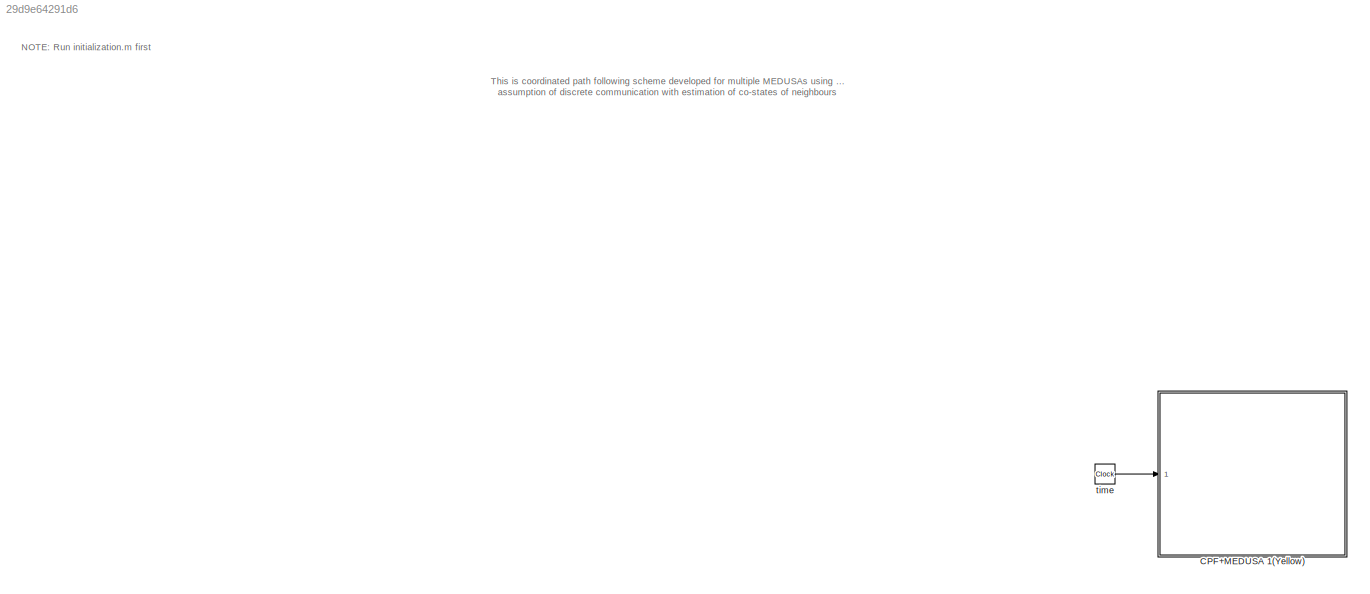
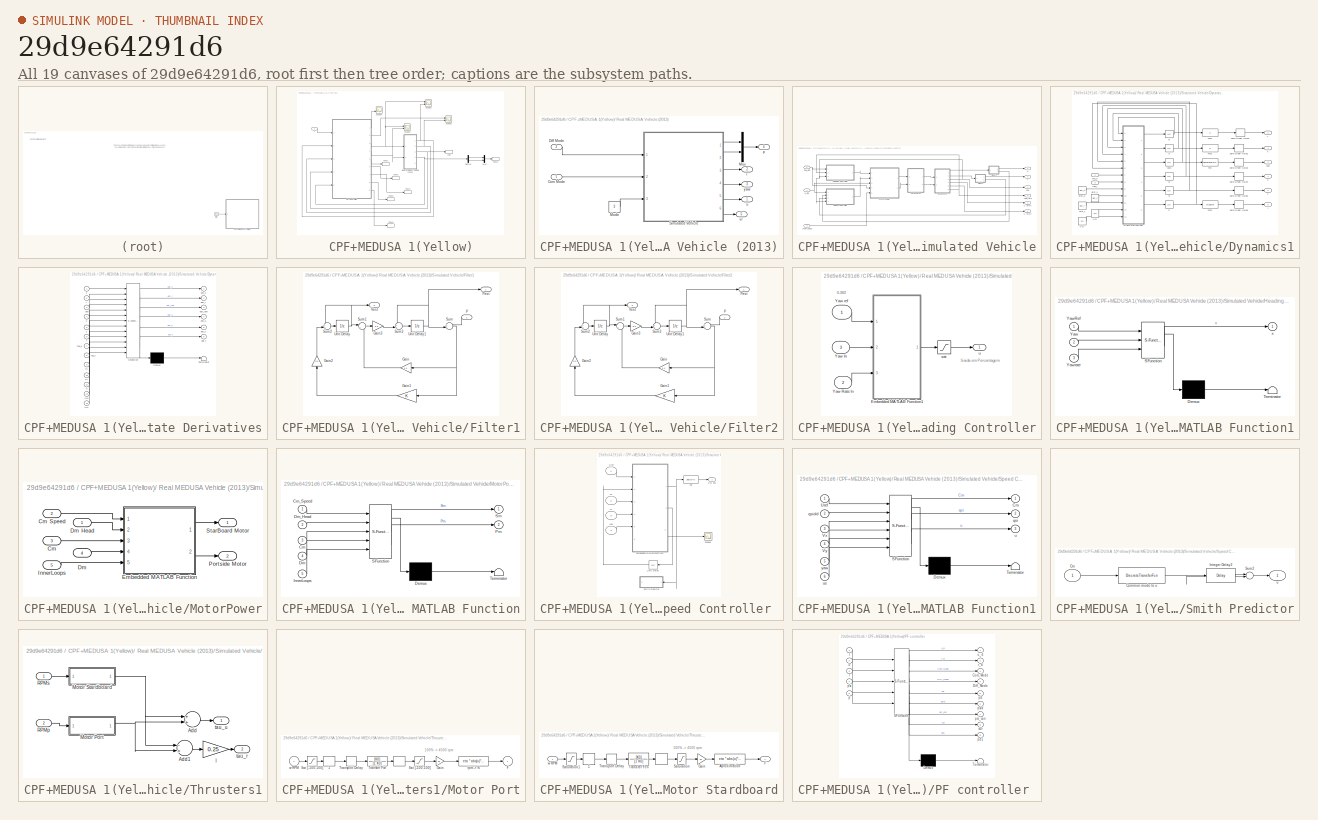
[diagram: thumbnail index - all 19 canvases of the model, root first then tree order]
MODEL slx_29d9e64291d6
KIND model
CONFIG AbsTol = auto
CONFIG FixedStep = Ts
CONFIG MaxStep = auto
CONFIG MinStep = auto
CONFIG RelTol = 1e-3
CONFIG SampleTimeConstraint = Unconstrained
CONFIG Solver = ode45
CONFIG SolverMode = Auto
CONFIG SolverName = ode45
CONFIG StartTime = 0.0
CONFIG StopTime = 400
BLOCK [SubSystem] CPF+MEDUSA 1(Yellow)
  Ports = [1]
  Priority = 2
  RequestExecContextInheritance = off
  TreatAsAtomicUnit = on
  Variant = off
BLOCK [SubSystem] CPF+MEDUSA 1(Yellow)/ Real MEDUSA Vehicle (2013)
  AncestorBlock = Mylibrary/\nReal MEDUSA Vehicle (2013)
  Ports = [2, 5]
  RequestExecContextInheritance = off
  Variant = off
BLOCK [Inport] CPF+MEDUSA 1(Yellow)/ Real MEDUSA Vehicle (2013)/Com Mode
  IconDisplay = Port number
BLOCK [Inport] CPF+MEDUSA 1(Yellow)/ Real MEDUSA Vehicle (2013)/Diff Mode
  IconDisplay = Port number
  Port = 2
BLOCK [Constant] CPF+MEDUSA 1(Yellow)/ Real MEDUSA Vehicle (2013)/Mode
  Value = 3
BLOCK [Mux] CPF+MEDUSA 1(Yellow)/ Real MEDUSA Vehicle (2013)/Mux
  DisplayOption = bar
  Inputs = 2
  Ports = [2, 1]
BLOCK [SubSystem] CPF+MEDUSA 1(Yellow)/ Real MEDUSA Vehicle (2013)/Simulated Vehicle
  Ports = [3, 6]
  RequestExecContextInheritance = off
  Variant = off
BLOCK [SubSystem] CPF+MEDUSA 1(Yellow)/ Real MEDUSA Vehicle (2013)/Simulated Vehicle/Dynamics1
  Ports = [2, 6]
  RequestExecContextInheritance = off
  Variant = off
BLOCK [Fcn] CPF+MEDUSA 1(Yellow)/ Real MEDUSA Vehicle (2013)/Simulated Vehicle/Dynamics1/Fcn
  Expr = 180+atan2(sin(u+pi),cos(u+pi))*180/pi
BLOCK [Fcn] CPF+MEDUSA 1(Yellow)/ Real MEDUSA Vehicle (2013)/Simulated Vehicle/Dynamics1/Fcn1
  Expr = u
BLOCK [Fcn] CPF+MEDUSA 1(Yellow)/ Real MEDUSA Vehicle (2013)/Simulated Vehicle/Dynamics1/Fcn2
  Expr = u
BLOCK [Fcn] CPF+MEDUSA 1(Yellow)/ Real MEDUSA Vehicle (2013)/Simulated Vehicle/Dynamics1/Fcn4
  Expr = u*180/pi
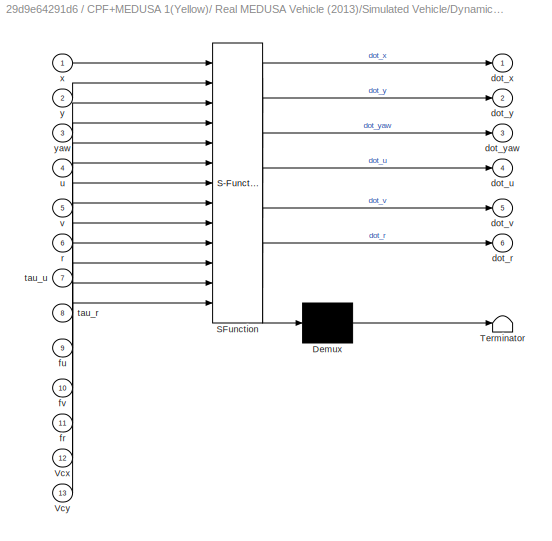
BLOCK [SubSystem] CPF+MEDUSA 1(Yellow)/ Real MEDUSA Vehicle (2013)/Simulated Vehicle/Dynamics1/State Derivatives
  ErrorFcn = Stateflow.Translate.translate
  PermitHierarchicalResolution = ExplicitOnly
  Ports = [13, 6]
  RequestExecContextInheritance = off
  SFBlockType = MATLAB Function
  TreatAsAtomicUnit = on
  Variant = off
BLOCK [Demux] CPF+MEDUSA 1(Yellow)/ Real MEDUSA Vehicle (2013)/Simulated Vehicle/Dynamics1/State Derivatives/ Demux 
  Outputs = 1
  Ports = [1, 1]
BLOCK [S-Function] CPF+MEDUSA 1(Yellow)/ Real MEDUSA Vehicle (2013)/Simulated Vehicle/Dynamics1/State Derivatives/ SFunction 
  EnableBusSupport = on
  FunctionName = sf_sfun
  PortCounts = [13 7]
  Ports = [13, 7]
  SFunctionDeploymentMode = off
  Tag = Stateflow S-Function PF_ToolwithMedusa_test 9
BLOCK [Terminator] CPF+MEDUSA 1(Yellow)/ Real MEDUSA Vehicle (2013)/Simulated Vehicle/Dynamics1/State Derivatives/ Terminator 
BLOCK [Inport] CPF+MEDUSA 1(Yellow)/ Real MEDUSA Vehicle (2013)/Simulated Vehicle/Dynamics1/State Derivatives/Vcx
  IconDisplay = Port number
  Port = 12
BLOCK [Inport] CPF+MEDUSA 1(Yellow)/ Real MEDUSA Vehicle (2013)/Simulated Vehicle/Dynamics1/State Derivatives/Vcy
  IconDisplay = Port number
  Port = 13
BLOCK [Outport] CPF+MEDUSA 1(Yellow)/ Real MEDUSA Vehicle (2013)/Simulated Vehicle/Dynamics1/State Derivatives/dot_r
  IconDisplay = Port number
  Port = 6
BLOCK [Outport] CPF+MEDUSA 1(Yellow)/ Real MEDUSA Vehicle (2013)/Simulated Vehicle/Dynamics1/State Derivatives/dot_u
  IconDisplay = Port number
  Port = 4
BLOCK [Outport] CPF+MEDUSA 1(Yellow)/ Real MEDUSA Vehicle (2013)/Simulated Vehicle/Dynamics1/State Derivatives/dot_v
  IconDisplay = Port number
  Port = 5
BLOCK [Outport] CPF+MEDUSA 1(Yellow)/ Real MEDUSA Vehicle (2013)/Simulated Vehicle/Dynamics1/State Derivatives/dot_x
  IconDisplay = Port number
BLOCK [Outport] CPF+MEDUSA 1(Yellow)/ Real MEDUSA Vehicle (2013)/Simulated Vehicle/Dynamics1/State Derivatives/dot_y
  IconDisplay = Port number
  Port = 2
BLOCK [Outport] CPF+MEDUSA 1(Yellow)/ Real MEDUSA Vehicle (2013)/Simulated Vehicle/Dynamics1/State Derivatives/dot_yaw
  IconDisplay = Port number
  Port = 3
BLOCK [Inport] CPF+MEDUSA 1(Yellow)/ Real MEDUSA Vehicle (2013)/Simulated Vehicle/Dynamics1/State Derivatives/fr
  IconDisplay = Port number
  Port = 11
BLOCK [Inport] CPF+MEDUSA 1(Yellow)/ Real MEDUSA Vehicle (2013)/Simulated Vehicle/Dynamics1/State Derivatives/fu
  IconDisplay = Port number
  Port = 9
BLOCK [Inport] CPF+MEDUSA 1(Yellow)/ Real MEDUSA Vehicle (2013)/Simulated Vehicle/Dynamics1/State Derivatives/fv
  IconDisplay = Port number
  Port = 10
BLOCK [Inport] CPF+MEDUSA 1(Yellow)/ Real MEDUSA Vehicle (2013)/Simulated Vehicle/Dynamics1/State Derivatives/r
  IconDisplay = Port number
  Port = 6
BLOCK [Inport] CPF+MEDUSA 1(Yellow)/ Real MEDUSA Vehicle (2013)/Simulated Vehicle/Dynamics1/State Derivatives/tau_r
  IconDisplay = Port number
  Port = 8
BLOCK [Inport] CPF+MEDUSA 1(Yellow)/ Real MEDUSA Vehicle (2013)/Simulated Vehicle/Dynamics1/State Derivatives/tau_u
  IconDisplay = Port number
  Port = 7
BLOCK [Inport] CPF+MEDUSA 1(Yellow)/ Real MEDUSA Vehicle (2013)/Simulated Vehicle/Dynamics1/State Derivatives/u
  IconDisplay = Port number
  Port = 4
BLOCK [Inport] CPF+MEDUSA 1(Yellow)/ Real MEDUSA Vehicle (2013)/Simulated Vehicle/Dynamics1/State Derivatives/v
  IconDisplay = Port number
  Port = 5
BLOCK [Inport] CPF+MEDUSA 1(Yellow)/ Real MEDUSA Vehicle (2013)/Simulated Vehicle/Dynamics1/State Derivatives/x
  IconDisplay = Port number
BLOCK [Inport] CPF+MEDUSA 1(Yellow)/ Real MEDUSA Vehicle (2013)/Simulated Vehicle/Dynamics1/State Derivatives/y
  IconDisplay = Port number
  Port = 2
BLOCK [Inport] CPF+MEDUSA 1(Yellow)/ Real MEDUSA Vehicle (2013)/Simulated Vehicle/Dynamics1/State Derivatives/yaw
  IconDisplay = Port number
  Port = 3
BLOCK [Constant] CPF+MEDUSA 1(Yellow)/ Real MEDUSA Vehicle (2013)/Simulated Vehicle/Dynamics1/Vcx
  Value = Vcx
BLOCK [Constant] CPF+MEDUSA 1(Yellow)/ Real MEDUSA Vehicle (2013)/Simulated Vehicle/Dynamics1/Vcy
  Value = Vcy
BLOCK [ZeroOrderHold] CPF+MEDUSA 1(Yellow)/ Real MEDUSA Vehicle (2013)/Simulated Vehicle/Dynamics1/Zero-Order Hold1
  SampleTime = 0.2
BLOCK [ZeroOrderHold] CPF+MEDUSA 1(Yellow)/ Real MEDUSA Vehicle (2013)/Simulated Vehicle/Dynamics1/Zero-Order Hold2
  SampleTime = 0.2
BLOCK [ZeroOrderHold] CPF+MEDUSA 1(Yellow)/ Real MEDUSA Vehicle (2013)/Simulated Vehicle/Dynamics1/Zero-Order Hold3
  SampleTime = 0.2
BLOCK [ZeroOrderHold] CPF+MEDUSA 1(Yellow)/ Real MEDUSA Vehicle (2013)/Simulated Vehicle/Dynamics1/Zero-Order Hold4
  SampleTime = 0.2
BLOCK [ZeroOrderHold] CPF+MEDUSA 1(Yellow)/ Real MEDUSA Vehicle (2013)/Simulated Vehicle/Dynamics1/Zero-Order Hold5
  SampleTime = 0.2
BLOCK [ZeroOrderHold] CPF+MEDUSA 1(Yellow)/ Real MEDUSA Vehicle (2013)/Simulated Vehicle/Dynamics1/Zero-Order Hold6
  SampleTime = 0.2
BLOCK [Constant] CPF+MEDUSA 1(Yellow)/ Real MEDUSA Vehicle (2013)/Simulated Vehicle/Dynamics1/dist_r
  Value = dist_r
BLOCK [Constant] CPF+MEDUSA 1(Yellow)/ Real MEDUSA Vehicle (2013)/Simulated Vehicle/Dynamics1/dist_u
  Value = dist_u
BLOCK [Constant] CPF+MEDUSA 1(Yellow)/ Real MEDUSA Vehicle (2013)/Simulated Vehicle/Dynamics1/dist_v
  Value = dist_v
BLOCK [Outport] CPF+MEDUSA 1(Yellow)/ Real MEDUSA Vehicle (2013)/Simulated Vehicle/Dynamics1/r
  IconDisplay = Port number
  Port = 6
BLOCK [Integrator] CPF+MEDUSA 1(Yellow)/ Real MEDUSA Vehicle (2013)/Simulated Vehicle/Dynamics1/ri
  InitialCondition = r0
  Ports = [1, 1]
BLOCK [Inport] CPF+MEDUSA 1(Yellow)/ Real MEDUSA Vehicle (2013)/Simulated Vehicle/Dynamics1/tau_r
  IconDisplay = Port number
  Port = 2
BLOCK [Inport] CPF+MEDUSA 1(Yellow)/ Real MEDUSA Vehicle (2013)/Simulated Vehicle/Dynamics1/tau_u
  IconDisplay = Port number
BLOCK [Outport] CPF+MEDUSA 1(Yellow)/ Real MEDUSA Vehicle (2013)/Simulated Vehicle/Dynamics1/u
  IconDisplay = Port number
  Port = 4
BLOCK [Integrator] CPF+MEDUSA 1(Yellow)/ Real MEDUSA Vehicle (2013)/Simulated Vehicle/Dynamics1/ui
  InitialCondition = u0
  Ports = [1, 1]
BLOCK [Outport] CPF+MEDUSA 1(Yellow)/ Real MEDUSA Vehicle (2013)/Simulated Vehicle/Dynamics1/v
  IconDisplay = Port number
  Port = 5
BLOCK [Integrator] CPF+MEDUSA 1(Yellow)/ Real MEDUSA Vehicle (2013)/Simulated Vehicle/Dynamics1/vi
  InitialCondition = v0
  Ports = [1, 1]
BLOCK [Outport] CPF+MEDUSA 1(Yellow)/ Real MEDUSA Vehicle (2013)/Simulated Vehicle/Dynamics1/x
  IconDisplay = Port number
BLOCK [Integrator] CPF+MEDUSA 1(Yellow)/ Real MEDUSA Vehicle (2013)/Simulated Vehicle/Dynamics1/xi
  InitialCondition = y0
  Ports = [1, 1]
BLOCK [Outport] CPF+MEDUSA 1(Yellow)/ Real MEDUSA Vehicle (2013)/Simulated Vehicle/Dynamics1/y
  IconDisplay = Port number
  Port = 2
BLOCK [Outport] CPF+MEDUSA 1(Yellow)/ Real MEDUSA Vehicle (2013)/Simulated Vehicle/Dynamics1/yaw
  IconDisplay = Port number
  Port = 3
BLOCK [Integrator] CPF+MEDUSA 1(Yellow)/ Real MEDUSA Vehicle (2013)/Simulated Vehicle/Dynamics1/yawi
  InitialCondition = yaw0
  Ports = [1, 1]
BLOCK [Integrator] CPF+MEDUSA 1(Yellow)/ Real MEDUSA Vehicle (2013)/Simulated Vehicle/Dynamics1/yi
  InitialCondition = x0
  Ports = [1, 1]
BLOCK [SubSystem] CPF+MEDUSA 1(Yellow)/ Real MEDUSA Vehicle (2013)/Simulated Vehicle/Filter1
  Ports = [1, 2]
  RequestExecContextInheritance = off
  Variant = off
BLOCK [Gain] CPF+MEDUSA 1(Yellow)/ Real MEDUSA Vehicle (2013)/Simulated Vehicle/Filter1/Gain
  Gain = 1.4
  OutDataTypeStr = Inherit: Inherit via internal rule
  ParamDataTypeStr = Inherit: Inherit via internal rule
  SaturateOnIntegerOverflow = off
BLOCK [Gain] CPF+MEDUSA 1(Yellow)/ Real MEDUSA Vehicle (2013)/Simulated Vehicle/Filter1/Gain1
  OutDataTypeStr = Inherit: Inherit via internal rule
  ParamDataTypeStr = Inherit: Inherit via internal rule
  SaturateOnIntegerOverflow = off
BLOCK [Gain] CPF+MEDUSA 1(Yellow)/ Real MEDUSA Vehicle (2013)/Simulated Vehicle/Filter1/Gain2
  Gain = 0.2
  OutDataTypeStr = Inherit: Inherit via internal rule
  ParamDataTypeStr = Inherit: Inherit via internal rule
  SaturateOnIntegerOverflow = off
BLOCK [Gain] CPF+MEDUSA 1(Yellow)/ Real MEDUSA Vehicle (2013)/Simulated Vehicle/Filter1/Gain3
  Gain = 0.2
  OutDataTypeStr = Inherit: Inherit via internal rule
  ParamDataTypeStr = Inherit: Inherit via internal rule
  SaturateOnIntegerOverflow = off
BLOCK [Inport] CPF+MEDUSA 1(Yellow)/ Real MEDUSA Vehicle (2013)/Simulated Vehicle/Filter1/P
  IconDisplay = Port number
BLOCK [Outport] CPF+MEDUSA 1(Yellow)/ Real MEDUSA Vehicle (2013)/Simulated Vehicle/Filter1/Pest
  IconDisplay = Port number
BLOCK [Sum] CPF+MEDUSA 1(Yellow)/ Real MEDUSA Vehicle (2013)/Simulated Vehicle/Filter1/Sum
  IconShape = round
  InputSameDT = off
  Inputs = +-|
  OutDataTypeStr = Inherit: Inherit via internal rule
  Ports = [2, 1]
  SaturateOnIntegerOverflow = off
BLOCK [Sum] CPF+MEDUSA 1(Yellow)/ Real MEDUSA Vehicle (2013)/Simulated Vehicle/Filter1/Sum1
  IconShape = round
  InputSameDT = off
  Inputs = |++
  OutDataTypeStr = Inherit: Inherit via internal rule
  Ports = [2, 1]
  SaturateOnIntegerOverflow = off
BLOCK [Sum] CPF+MEDUSA 1(Yellow)/ Real MEDUSA Vehicle (2013)/Simulated Vehicle/Filter1/Sum2
  IconShape = round
  InputSameDT = off
  Inputs = ++|
  OutDataTypeStr = Inherit: Inherit via internal rule
  Ports = [2, 1]
  SaturateOnIntegerOverflow = off
BLOCK [Sum] CPF+MEDUSA 1(Yellow)/ Real MEDUSA Vehicle (2013)/Simulated Vehicle/Filter1/Sum3
  IconShape = round
  InputSameDT = off
  Inputs = ++|
  OutDataTypeStr = Inherit: Inherit via internal rule
  Ports = [2, 1]
  SaturateOnIntegerOverflow = off
BLOCK [UnitDelay] CPF+MEDUSA 1(Yellow)/ Real MEDUSA Vehicle (2013)/Simulated Vehicle/Filter1/Unit Delay
  SampleTime = -1
BLOCK [UnitDelay] CPF+MEDUSA 1(Yellow)/ Real MEDUSA Vehicle (2013)/Simulated Vehicle/Filter1/Unit Delay1
  InitialCondition = 290
  SampleTime = -1
BLOCK [Outport] CPF+MEDUSA 1(Yellow)/ Real MEDUSA Vehicle (2013)/Simulated Vehicle/Filter1/Vest
  IconDisplay = Port number
  Port = 2
BLOCK [SubSystem] CPF+MEDUSA 1(Yellow)/ Real MEDUSA Vehicle (2013)/Simulated Vehicle/Filter2
  Ports = [1, 2]
  RequestExecContextInheritance = off
  Variant = off
BLOCK [Gain] CPF+MEDUSA 1(Yellow)/ Real MEDUSA Vehicle (2013)/Simulated Vehicle/Filter2/Gain
  Gain = 1.4
  OutDataTypeStr = Inherit: Inherit via internal rule
  ParamDataTypeStr = Inherit: Inherit via internal rule
  SaturateOnIntegerOverflow = off
BLOCK [Gain] CPF+MEDUSA 1(Yellow)/ Real MEDUSA Vehicle (2013)/Simulated Vehicle/Filter2/Gain1
  OutDataTypeStr = Inherit: Inherit via internal rule
  ParamDataTypeStr = Inherit: Inherit via internal rule
  SaturateOnIntegerOverflow = off
BLOCK [Gain] CPF+MEDUSA 1(Yellow)/ Real MEDUSA Vehicle (2013)/Simulated Vehicle/Filter2/Gain2
  Gain = 0.2
  OutDataTypeStr = Inherit: Inherit via internal rule
  ParamDataTypeStr = Inherit: Inherit via internal rule
  SaturateOnIntegerOverflow = off
BLOCK [Gain] CPF+MEDUSA 1(Yellow)/ Real MEDUSA Vehicle (2013)/Simulated Vehicle/Filter2/Gain3
  Gain = 0.2
  OutDataTypeStr = Inherit: Inherit via internal rule
  ParamDataTypeStr = Inherit: Inherit via internal rule
  SaturateOnIntegerOverflow = off
BLOCK [Inport] CPF+MEDUSA 1(Yellow)/ Real MEDUSA Vehicle (2013)/Simulated Vehicle/Filter2/P
  IconDisplay = Port number
BLOCK [Outport] CPF+MEDUSA 1(Yellow)/ Real MEDUSA Vehicle (2013)/Simulated Vehicle/Filter2/Pest
  IconDisplay = Port number
BLOCK [Sum] CPF+MEDUSA 1(Yellow)/ Real MEDUSA Vehicle (2013)/Simulated Vehicle/Filter2/Sum
  IconShape = round
  InputSameDT = off
  Inputs = +-|
  OutDataTypeStr = Inherit: Inherit via internal rule
  Ports = [2, 1]
  SaturateOnIntegerOverflow = off
BLOCK [Sum] CPF+MEDUSA 1(Yellow)/ Real MEDUSA Vehicle (2013)/Simulated Vehicle/Filter2/Sum1
  IconShape = round
  InputSameDT = off
  Inputs = |++
  OutDataTypeStr = Inherit: Inherit via internal rule
  Ports = [2, 1]
  SaturateOnIntegerOverflow = off
BLOCK [Sum] CPF+MEDUSA 1(Yellow)/ Real MEDUSA Vehicle (2013)/Simulated Vehicle/Filter2/Sum2
  IconShape = round
  InputSameDT = off
  Inputs = ++|
  OutDataTypeStr = Inherit: Inherit via internal rule
  Ports = [2, 1]
  SaturateOnIntegerOverflow = off
BLOCK [Sum] CPF+MEDUSA 1(Yellow)/ Real MEDUSA Vehicle (2013)/Simulated Vehicle/Filter2/Sum3
  IconShape = round
  InputSameDT = off
  Inputs = ++|
  OutDataTypeStr = Inherit: Inherit via internal rule
  Ports = [2, 1]
  SaturateOnIntegerOverflow = off
BLOCK [UnitDelay] CPF+MEDUSA 1(Yellow)/ Real MEDUSA Vehicle (2013)/Simulated Vehicle/Filter2/Unit Delay
  SampleTime = -1
BLOCK [UnitDelay] CPF+MEDUSA 1(Yellow)/ Real MEDUSA Vehicle (2013)/Simulated Vehicle/Filter2/Unit Delay1
  InitialCondition = 200
  SampleTime = -1
BLOCK [Outport] CPF+MEDUSA 1(Yellow)/ Real MEDUSA Vehicle (2013)/Simulated Vehicle/Filter2/Vest
  IconDisplay = Port number
  Port = 2
BLOCK [SubSystem] CPF+MEDUSA 1(Yellow)/ Real MEDUSA Vehicle (2013)/Simulated Vehicle/Heading Controller
  Ports = [3, 1]
  RequestExecContextInheritance = off
  Variant = off
BLOCK [SubSystem] CPF+MEDUSA 1(Yellow)/ Real MEDUSA Vehicle (2013)/Simulated Vehicle/Heading Controller/Embedded MATLAB Function1
  ErrorFcn = Stateflow.Translate.translate
  PermitHierarchicalResolution = ExplicitOnly
  Ports = [3, 1]
  RequestExecContextInheritance = off
  SFBlockType = MATLAB Function
  TreatAsAtomicUnit = on
  Variant = off
BLOCK [Demux] CPF+MEDUSA 1(Yellow)/ Real MEDUSA Vehicle (2013)/Simulated Vehicle/Heading Controller/Embedded MATLAB Function1/ Demux 
  Outputs = 1
  Ports = [1, 1]
BLOCK [S-Function] CPF+MEDUSA 1(Yellow)/ Real MEDUSA Vehicle (2013)/Simulated Vehicle/Heading Controller/Embedded MATLAB Function1/ SFunction 
  EnableBusSupport = on
  FunctionName = sf_sfun
  Parameters = Kd,Kp
  PortCounts = [3 2]
  Ports = [3, 2]
  SFunctionDeploymentMode = off
  Tag = Stateflow S-Function PF_ToolwithMedusa_test 1
BLOCK [Terminator] CPF+MEDUSA 1(Yellow)/ Real MEDUSA Vehicle (2013)/Simulated Vehicle/Heading Controller/Embedded MATLAB Function1/ Terminator 
BLOCK [Inport] CPF+MEDUSA 1(Yellow)/ Real MEDUSA Vehicle (2013)/Simulated Vehicle/Heading Controller/Embedded MATLAB Function1/Yaw
  IconDisplay = Port number
  Port = 2
BLOCK [Inport] CPF+MEDUSA 1(Yellow)/ Real MEDUSA Vehicle (2013)/Simulated Vehicle/Heading Controller/Embedded MATLAB Function1/YawRef
  IconDisplay = Port number
BLOCK [Inport] CPF+MEDUSA 1(Yellow)/ Real MEDUSA Vehicle (2013)/Simulated Vehicle/Heading Controller/Embedded MATLAB Function1/Yawrate
  IconDisplay = Port number
  Port = 3
BLOCK [Outport] CPF+MEDUSA 1(Yellow)/ Real MEDUSA Vehicle (2013)/Simulated Vehicle/Heading Controller/Embedded MATLAB Function1/x
  IconDisplay = Port number
BLOCK [Inport] CPF+MEDUSA 1(Yellow)/ Real MEDUSA Vehicle (2013)/Simulated Vehicle/Heading Controller/Yaw In
  IconDisplay = Port number
  Port = 3
BLOCK [Inport] CPF+MEDUSA 1(Yellow)/ Real MEDUSA Vehicle (2013)/Simulated Vehicle/Heading Controller/Yaw Rate In
  IconDisplay = Port number
  Port = 2
  SampleTime = Ts
BLOCK [Inport] CPF+MEDUSA 1(Yellow)/ Real MEDUSA Vehicle (2013)/Simulated Vehicle/Heading Controller/Yaw ref
  IconDisplay = Port number
  SampleTime = Ts
BLOCK [Saturate] CPF+MEDUSA 1(Yellow)/ Real MEDUSA Vehicle (2013)/Simulated Vehicle/Heading Controller/sat
  InputPortMap = u0
  LowerLimit = -Inf
  Ports = [1, 1]
  SampleTime = Ts
  UpperLimit = Inf
BLOCK [Outport] CPF+MEDUSA 1(Yellow)/ Real MEDUSA Vehicle (2013)/Simulated Vehicle/Heading Controller/u
  IconDisplay = Port number
BLOCK [Inport] CPF+MEDUSA 1(Yellow)/ Real MEDUSA Vehicle (2013)/Simulated Vehicle/InnerLoops
  IconDisplay = Port number
  Port = 3
BLOCK [SubSystem] CPF+MEDUSA 1(Yellow)/ Real MEDUSA Vehicle (2013)/Simulated Vehicle/MotorPower
  Ports = [5, 2]
  RequestExecContextInheritance = off
  Variant = off
BLOCK [Inport] CPF+MEDUSA 1(Yellow)/ Real MEDUSA Vehicle (2013)/Simulated Vehicle/MotorPower/Cm
  IconDisplay = Port number
  Port = 3
BLOCK [Inport] CPF+MEDUSA 1(Yellow)/ Real MEDUSA Vehicle (2013)/Simulated Vehicle/MotorPower/Cm Speed
  IconDisplay = Port number
  Port = 2
BLOCK [Inport] CPF+MEDUSA 1(Yellow)/ Real MEDUSA Vehicle (2013)/Simulated Vehicle/MotorPower/Dm
  IconDisplay = Port number
  Port = 4
BLOCK [Inport] CPF+MEDUSA 1(Yellow)/ Real MEDUSA Vehicle (2013)/Simulated Vehicle/MotorPower/Dm Head
  IconDisplay = Port number
BLOCK [SubSystem] CPF+MEDUSA 1(Yellow)/ Real MEDUSA Vehicle (2013)/Simulated Vehicle/MotorPower/Embedded MATLAB Function
  ErrorFcn = Stateflow.Translate.translate
  PermitHierarchicalResolution = ExplicitOnly
  Ports = [5, 2]
  RequestExecContextInheritance = off
  SFBlockType = MATLAB Function
  TreatAsAtomicUnit = on
  Variant = off
BLOCK [Demux] CPF+MEDUSA 1(Yellow)/ Real MEDUSA Vehicle (2013)/Simulated Vehicle/MotorPower/Embedded MATLAB Function/ Demux 
  Outputs = 1
  Ports = [1, 1]
BLOCK [S-Function] CPF+MEDUSA 1(Yellow)/ Real MEDUSA Vehicle (2013)/Simulated Vehicle/MotorPower/Embedded MATLAB Function/ SFunction 
  EnableBusSupport = on
  FunctionName = sf_sfun
  PortCounts = [5 3]
  Ports = [5, 3]
  SFunctionDeploymentMode = off
  Tag = Stateflow S-Function PF_ToolwithMedusa_test 2
BLOCK [Terminator] CPF+MEDUSA 1(Yellow)/ Real MEDUSA Vehicle (2013)/Simulated Vehicle/MotorPower/Embedded MATLAB Function/ Terminator 
BLOCK [Inport] CPF+MEDUSA 1(Yellow)/ Real MEDUSA Vehicle (2013)/Simulated Vehicle/MotorPower/Embedded MATLAB Function/Cm
  IconDisplay = Port number
  Port = 3
BLOCK [Inport] CPF+MEDUSA 1(Yellow)/ Real MEDUSA Vehicle (2013)/Simulated Vehicle/MotorPower/Embedded MATLAB Function/Cm_Speed
  IconDisplay = Port number
BLOCK [Inport] CPF+MEDUSA 1(Yellow)/ Real MEDUSA Vehicle (2013)/Simulated Vehicle/MotorPower/Embedded MATLAB Function/Dm
  IconDisplay = Port number
  Port = 4
BLOCK [Inport] CPF+MEDUSA 1(Yellow)/ Real MEDUSA Vehicle (2013)/Simulated Vehicle/MotorPower/Embedded MATLAB Function/Dm_Head
  IconDisplay = Port number
  Port = 2
BLOCK [Inport] CPF+MEDUSA 1(Yellow)/ Real MEDUSA Vehicle (2013)/Simulated Vehicle/MotorPower/Embedded MATLAB Function/InnerLoops
  IconDisplay = Port number
  Port = 5
BLOCK [Outport] CPF+MEDUSA 1(Yellow)/ Real MEDUSA Vehicle (2013)/Simulated Vehicle/MotorPower/Embedded MATLAB Function/Pm
  IconDisplay = Port number
  Port = 2
BLOCK [Outport] CPF+MEDUSA 1(Yellow)/ Real MEDUSA Vehicle (2013)/Simulated Vehicle/MotorPower/Embedded MATLAB Function/Sm
  IconDisplay = Port number
BLOCK [Inport] CPF+MEDUSA 1(Yellow)/ Real MEDUSA Vehicle (2013)/Simulated Vehicle/MotorPower/InnerLoops
  IconDisplay = Port number
  Port = 5
BLOCK [Outport] CPF+MEDUSA 1(Yellow)/ Real MEDUSA Vehicle (2013)/Simulated Vehicle/MotorPower/Portside Motor
  IconDisplay = Port number
  Port = 2
BLOCK [Outport] CPF+MEDUSA 1(Yellow)/ Real MEDUSA Vehicle (2013)/Simulated Vehicle/MotorPower/StarBoard Motor
  IconDisplay = Port number
BLOCK [SubSystem] CPF+MEDUSA 1(Yellow)/ Real MEDUSA Vehicle (2013)/Simulated Vehicle/Speed Controller 
  Ports = [4, 1]
  RequestExecContextInheritance = off
  Variant = off
BLOCK [Outport] CPF+MEDUSA 1(Yellow)/ Real MEDUSA Vehicle (2013)/Simulated Vehicle/Speed Controller /Cm sqr
  IconDisplay = Port number
BLOCK [SubSystem] CPF+MEDUSA 1(Yellow)/ Real MEDUSA Vehicle (2013)/Simulated Vehicle/Speed Controller /Embedded MATLAB Function1
  ErrorFcn = Stateflow.Translate.translate
  PermitHierarchicalResolution = ExplicitOnly
  Ports = [6, 3]
  RequestExecContextInheritance = off
  SFBlockType = MATLAB Function
  TreatAsAtomicUnit = on
  Variant = off
BLOCK [Demux] CPF+MEDUSA 1(Yellow)/ Real MEDUSA Vehicle (2013)/Simulated Vehicle/Speed Controller /Embedded MATLAB Function1/ Demux 
  Outputs = 1
  Ports = [1, 1]
BLOCK [S-Function] CPF+MEDUSA 1(Yellow)/ Real MEDUSA Vehicle (2013)/Simulated Vehicle/Speed Controller /Embedded MATLAB Function1/ SFunction 
  EnableBusSupport = on
  FunctionName = sf_sfun
  Parameters = KSat,Kiu,Kpu
  PortCounts = [6 4]
  Ports = [6, 4]
  SFunctionDeploymentMode = off
  Tag = Stateflow S-Function PF_ToolwithMedusa_test 3
BLOCK [Terminator] CPF+MEDUSA 1(Yellow)/ Real MEDUSA Vehicle (2013)/Simulated Vehicle/Speed Controller /Embedded MATLAB Function1/ Terminator 
BLOCK [Outport] CPF+MEDUSA 1(Yellow)/ Real MEDUSA Vehicle (2013)/Simulated Vehicle/Speed Controller /Embedded MATLAB Function1/Cm
  IconDisplay = Port number
BLOCK [Inport] CPF+MEDUSA 1(Yellow)/ Real MEDUSA Vehicle (2013)/Simulated Vehicle/Speed Controller /Embedded MATLAB Function1/Uref
  IconDisplay = Port number
BLOCK [Inport] CPF+MEDUSA 1(Yellow)/ Real MEDUSA Vehicle (2013)/Simulated Vehicle/Speed Controller /Embedded MATLAB Function1/Vx
  IconDisplay = Port number
  Port = 3
BLOCK [Inport] CPF+MEDUSA 1(Yellow)/ Real MEDUSA Vehicle (2013)/Simulated Vehicle/Speed Controller /Embedded MATLAB Function1/Vy
  IconDisplay = Port number
  Port = 4
BLOCK [Outport] CPF+MEDUSA 1(Yellow)/ Real MEDUSA Vehicle (2013)/Simulated Vehicle/Speed Controller /Embedded MATLAB Function1/qsi
  IconDisplay = Port number
  Port = 2
BLOCK [Inport] CPF+MEDUSA 1(Yellow)/ Real MEDUSA Vehicle (2013)/Simulated Vehicle/Speed Controller /Embedded MATLAB Function1/qsiold
  IconDisplay = Port number
  Port = 2
BLOCK [Outport] CPF+MEDUSA 1(Yellow)/ Real MEDUSA Vehicle (2013)/Simulated Vehicle/Speed Controller /Embedded MATLAB Function1/u
  IconDisplay = Port number
  Port = 3
BLOCK [Inport] CPF+MEDUSA 1(Yellow)/ Real MEDUSA Vehicle (2013)/Simulated Vehicle/Speed Controller /Embedded MATLAB Function1/us
  IconDisplay = Port number
  Port = 6
BLOCK [Inport] CPF+MEDUSA 1(Yellow)/ Real MEDUSA Vehicle (2013)/Simulated Vehicle/Speed Controller /Embedded MATLAB Function1/yaw
  IconDisplay = Port number
  Port = 5
BLOCK [Scope] CPF+MEDUSA 1(Yellow)/ Real MEDUSA Vehicle (2013)/Simulated Vehicle/Speed Controller /Scope4
  Ports = [1]
  ScopeSpecificationString = C++SS(StrPVP('Location','[5, 48, 1921, 1039]'),StrPVP('Open','off'),MxPVP('AxesTitles',24,'struct(''axes1'',''%<SignalLabel>'')'),StrPVP('SaveName','ScopeData5'),StrPVP('DataFormat','StructureWithTime'),StrPVP('BlockParamSampleTime','0'),StrPVP('LimitDataPoints','on'),StrPVP('Decimation','1'),StrPVP('BlockParamSampleInput','off'))
BLOCK [SubSystem] CPF+MEDUSA 1(Yellow)/ Real MEDUSA Vehicle (2013)/Simulated Vehicle/Speed Controller /Smith Predictor
  Ports = [1, 1]
  RequestExecContextInheritance = off
  Variant = off
BLOCK [Inport] CPF+MEDUSA 1(Yellow)/ Real MEDUSA Vehicle (2013)/Simulated Vehicle/Speed Controller /Smith Predictor/Cm
  IconDisplay = Port number
BLOCK [DiscreteTransferFcn] CPF+MEDUSA 1(Yellow)/ Real MEDUSA Vehicle (2013)/Simulated Vehicle/Speed Controller /Smith Predictor/Common mode to u
  Denominator = [1 -0.6368 -0.2936]
  InputPortMap = u0
  Numerator = [0.0006641 0]
  Ports = [1, 1]
  SampleTime = 0.2
BLOCK [Delay] CPF+MEDUSA 1(Yellow)/ Real MEDUSA Vehicle (2013)/Simulated Vehicle/Speed Controller /Smith Predictor/Integer Delay2
  DelayLength = 7
  InputPortMap = u0
  InputProcessing = Inherited
  Ports = [1, 1]
  SampleTime = 0.2
  UserDataPersistent = on
BLOCK [Sum] CPF+MEDUSA 1(Yellow)/ Real MEDUSA Vehicle (2013)/Simulated Vehicle/Speed Controller /Smith Predictor/Sum2
  IconShape = round
  InputSameDT = off
  Inputs = |-+
  OutDataTypeStr = Inherit: Inherit via internal rule
  Ports = [2, 1]
  SaturateOnIntegerOverflow = off
BLOCK [Outport] CPF+MEDUSA 1(Yellow)/ Real MEDUSA Vehicle (2013)/Simulated Vehicle/Speed Controller /Smith Predictor/u
  IconDisplay = Port number
BLOCK [UnitDelay] CPF+MEDUSA 1(Yellow)/ Real MEDUSA Vehicle (2013)/Simulated Vehicle/Speed Controller /Unit Delay
  SampleTime = 0.2
BLOCK [Inport] CPF+MEDUSA 1(Yellow)/ Real MEDUSA Vehicle (2013)/Simulated Vehicle/Speed Controller /Uref
  IconDisplay = Port number
BLOCK [Inport] CPF+MEDUSA 1(Yellow)/ Real MEDUSA Vehicle (2013)/Simulated Vehicle/Speed Controller /Vx
  IconDisplay = Port number
  Port = 2
BLOCK [Inport] CPF+MEDUSA 1(Yellow)/ Real MEDUSA Vehicle (2013)/Simulated Vehicle/Speed Controller /Vy
  IconDisplay = Port number
  Port = 3
BLOCK [Fcn] CPF+MEDUSA 1(Yellow)/ Real MEDUSA Vehicle (2013)/Simulated Vehicle/Speed Controller /sqr
  Expr = abs(u)*u
BLOCK [Inport] CPF+MEDUSA 1(Yellow)/ Real MEDUSA Vehicle (2013)/Simulated Vehicle/Speed Controller /yaw
  IconDisplay = Port number
  Port = 4
BLOCK [SubSystem] CPF+MEDUSA 1(Yellow)/ Real MEDUSA Vehicle (2013)/Simulated Vehicle/Thrusters1
  Ports = [2, 2]
  RequestExecContextInheritance = off
  Variant = off
BLOCK [Sum] CPF+MEDUSA 1(Yellow)/ Real MEDUSA Vehicle (2013)/Simulated Vehicle/Thrusters1/Add
  InputSameDT = off
  OutDataTypeStr = Inherit: Inherit via internal rule
  Ports = [2, 1]
  SaturateOnIntegerOverflow = off
BLOCK [Sum] CPF+MEDUSA 1(Yellow)/ Real MEDUSA Vehicle (2013)/Simulated Vehicle/Thrusters1/Add1
  InputSameDT = off
  Inputs = -+
  OutDataTypeStr = Inherit: Inherit via internal rule
  Ports = [2, 1]
  SaturateOnIntegerOverflow = off
BLOCK [SubSystem] CPF+MEDUSA 1(Yellow)/ Real MEDUSA Vehicle (2013)/Simulated Vehicle/Thrusters1/Motor Port
  Ports = [1, 1]
  RequestExecContextInheritance = off
  Variant = off
BLOCK [Rounding] CPF+MEDUSA 1(Yellow)/ Real MEDUSA Vehicle (2013)/Simulated Vehicle/Thrusters1/Motor Port/  
  Operator = round
BLOCK [Rounding] CPF+MEDUSA 1(Yellow)/ Real MEDUSA Vehicle (2013)/Simulated Vehicle/Thrusters1/Motor Port/  1
  Operator = round
BLOCK [Outport] CPF+MEDUSA 1(Yellow)/ Real MEDUSA Vehicle (2013)/Simulated Vehicle/Thrusters1/Motor Port/F
  IconDisplay = Port number
BLOCK [Gain] CPF+MEDUSA 1(Yellow)/ Real MEDUSA Vehicle (2013)/Simulated Vehicle/Thrusters1/Motor Port/Gain
  Gain = 45
  OutDataTypeStr = Inherit: Inherit via internal rule
  ParamDataTypeStr = Inherit: Inherit via internal rule
  SaturateOnIntegerOverflow = off
BLOCK [Saturate] CPF+MEDUSA 1(Yellow)/ Real MEDUSA Vehicle (2013)/Simulated Vehicle/Thrusters1/Motor Port/Sat [-100,100]
  InputPortMap = u0
  LowerLimit = -100
  Ports = [1, 1]
  UpperLimit = 100
BLOCK [Saturate] CPF+MEDUSA 1(Yellow)/ Real MEDUSA Vehicle (2013)/Simulated Vehicle/Thrusters1/Motor Port/Sat [-100,100] 
  InputPortMap = u0
  LowerLimit = -100
  Ports = [1, 1]
  UpperLimit = 100
BLOCK [TransferFcn] CPF+MEDUSA 1(Yellow)/ Real MEDUSA Vehicle (2013)/Simulated Vehicle/Thrusters1/Motor Port/Transfer Fcn
  Denominator = [1 K0]
  Numerator = [K0]
BLOCK [TransportDelay] CPF+MEDUSA 1(Yellow)/ Real MEDUSA Vehicle (2013)/Simulated Vehicle/Thrusters1/Motor Port/Transport Delay
  DelayTime = tau
  Ports = [1, 1]
BLOCK [Fcn] CPF+MEDUSA 1(Yellow)/ Real MEDUSA Vehicle (2013)/Simulated Vehicle/Thrusters1/Motor Port/rpm -> N
  Expr = eta * abs(u)* u
BLOCK [Inport] CPF+MEDUSA 1(Yellow)/ Real MEDUSA Vehicle (2013)/Simulated Vehicle/Thrusters1/Motor Port/w RPM
  IconDisplay = Port number
BLOCK [SubSystem] CPF+MEDUSA 1(Yellow)/ Real MEDUSA Vehicle (2013)/Simulated Vehicle/Thrusters1/Motor Stardboard
  Ports = [1, 1]
  RequestExecContextInheritance = off
  Variant = off
BLOCK [Rounding] CPF+MEDUSA 1(Yellow)/ Real MEDUSA Vehicle (2013)/Simulated Vehicle/Thrusters1/Motor Stardboard/  
  Operator = round
BLOCK [Rounding] CPF+MEDUSA 1(Yellow)/ Real MEDUSA Vehicle (2013)/Simulated Vehicle/Thrusters1/Motor Stardboard/  1
  Operator = round
BLOCK [Fcn] CPF+MEDUSA 1(Yellow)/ Real MEDUSA Vehicle (2013)/Simulated Vehicle/Thrusters1/Motor Stardboard/Aproximation
  Expr = eta * abs(u)* u
BLOCK [Outport] CPF+MEDUSA 1(Yellow)/ Real MEDUSA Vehicle (2013)/Simulated Vehicle/Thrusters1/Motor Stardboard/F
  IconDisplay = Port number
BLOCK [Gain] CPF+MEDUSA 1(Yellow)/ Real MEDUSA Vehicle (2013)/Simulated Vehicle/Thrusters1/Motor Stardboard/Gain
  Gain = 45
  OutDataTypeStr = Inherit: Inherit via internal rule
  ParamDataTypeStr = Inherit: Inherit via internal rule
  SaturateOnIntegerOverflow = off
BLOCK [Saturate] CPF+MEDUSA 1(Yellow)/ Real MEDUSA Vehicle (2013)/Simulated Vehicle/Thrusters1/Motor Stardboard/Saturation
  InputPortMap = u0
  LowerLimit = -100
  Ports = [1, 1]
  UpperLimit = 100
BLOCK [Saturate] CPF+MEDUSA 1(Yellow)/ Real MEDUSA Vehicle (2013)/Simulated Vehicle/Thrusters1/Motor Stardboard/Saturation1
  InputPortMap = u0
  LowerLimit = -100
  Ports = [1, 1]
  UpperLimit = 100
BLOCK [TransferFcn] CPF+MEDUSA 1(Yellow)/ Real MEDUSA Vehicle (2013)/Simulated Vehicle/Thrusters1/Motor Stardboard/Transfer Fcn
  Denominator = [1 K0]
  Numerator = [K0]
BLOCK [TransportDelay] CPF+MEDUSA 1(Yellow)/ Real MEDUSA Vehicle (2013)/Simulated Vehicle/Thrusters1/Motor Stardboard/Transport Delay
  DelayTime = tau
  Ports = [1, 1]
BLOCK [Inport] CPF+MEDUSA 1(Yellow)/ Real MEDUSA Vehicle (2013)/Simulated Vehicle/Thrusters1/Motor Stardboard/w RPM
  IconDisplay = Port number
BLOCK [Inport] CPF+MEDUSA 1(Yellow)/ Real MEDUSA Vehicle (2013)/Simulated Vehicle/Thrusters1/RPMp
  IconDisplay = Port number
  Port = 2
BLOCK [Inport] CPF+MEDUSA 1(Yellow)/ Real MEDUSA Vehicle (2013)/Simulated Vehicle/Thrusters1/RPMs
  IconDisplay = Port number
BLOCK [Gain] CPF+MEDUSA 1(Yellow)/ Real MEDUSA Vehicle (2013)/Simulated Vehicle/Thrusters1/l
  Gain = 0.25
  OutDataTypeStr = Inherit: Inherit via internal rule
  ParamDataTypeStr = Inherit: Inherit via internal rule
  SaturateOnIntegerOverflow = off
BLOCK [Outport] CPF+MEDUSA 1(Yellow)/ Real MEDUSA Vehicle (2013)/Simulated Vehicle/Thrusters1/tau_r
  IconDisplay = Port number
  Port = 2
BLOCK [Outport] CPF+MEDUSA 1(Yellow)/ Real MEDUSA Vehicle (2013)/Simulated Vehicle/Thrusters1/tau_u
  IconDisplay = Port number
BLOCK [Inport] CPF+MEDUSA 1(Yellow)/ Real MEDUSA Vehicle (2013)/Simulated Vehicle/U_Ref
  IconDisplay = Port number
  Port = 2
BLOCK [Outport] CPF+MEDUSA 1(Yellow)/ Real MEDUSA Vehicle (2013)/Simulated Vehicle/Yaw
  IconDisplay = Port number
  Port = 4
BLOCK [Inport] CPF+MEDUSA 1(Yellow)/ Real MEDUSA Vehicle (2013)/Simulated Vehicle/Yaw_Ref
  IconDisplay = Port number
BLOCK [Outport] CPF+MEDUSA 1(Yellow)/ Real MEDUSA Vehicle (2013)/Simulated Vehicle/Yaw_rate
  IconDisplay = Port number
  Port = 3
BLOCK [Outport] CPF+MEDUSA 1(Yellow)/ Real MEDUSA Vehicle (2013)/Simulated Vehicle/u (SIM)
  IconDisplay = Port number
  Port = 5
BLOCK [Outport] CPF+MEDUSA 1(Yellow)/ Real MEDUSA Vehicle (2013)/Simulated Vehicle/v (SIM)
  IconDisplay = Port number
  Port = 6
BLOCK [Outport] CPF+MEDUSA 1(Yellow)/ Real MEDUSA Vehicle (2013)/Simulated Vehicle/x
  IconDisplay = Port number
BLOCK [Outport] CPF+MEDUSA 1(Yellow)/ Real MEDUSA Vehicle (2013)/Simulated Vehicle/y
  IconDisplay = Port number
  Port = 2
BLOCK [Outport] CPF+MEDUSA 1(Yellow)/ Real MEDUSA Vehicle (2013)/p
  IconDisplay = Port number
  Port = 4
BLOCK [Outport] CPF+MEDUSA 1(Yellow)/ Real MEDUSA Vehicle (2013)/r
  IconDisplay = Port number
  Port = 2
BLOCK [Outport] CPF+MEDUSA 1(Yellow)/ Real MEDUSA Vehicle (2013)/u
  IconDisplay = Port number
BLOCK [Outport] CPF+MEDUSA 1(Yellow)/ Real MEDUSA Vehicle (2013)/vr
  IconDisplay = Port number
  Port = 5
BLOCK [Outport] CPF+MEDUSA 1(Yellow)/ Real MEDUSA Vehicle (2013)/yaw
  IconDisplay = Port number
  Port = 3
BLOCK [Demux] CPF+MEDUSA 1(Yellow)/Demux
  DisplayOption = bar
  Outputs = 2
  Ports = [1, 2]
BLOCK [Mux] CPF+MEDUSA 1(Yellow)/Mux
  DisplayOption = bar
  Inputs = 2
  Ports = [2, 1]
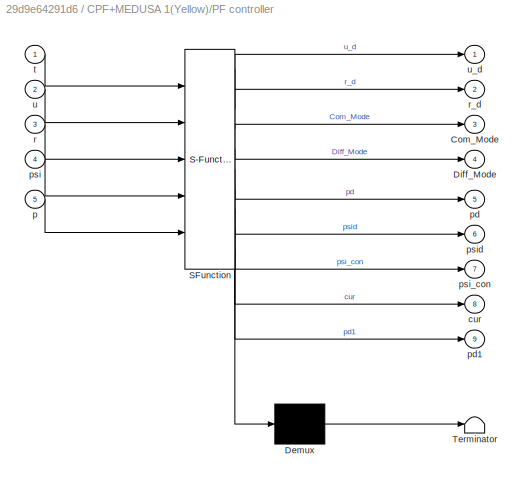
BLOCK [SubSystem] CPF+MEDUSA 1(Yellow)/PF controller 
  ErrorFcn = Stateflow.Translate.translate
  PermitHierarchicalResolution = ExplicitOnly
  Ports = [5, 9]
  RequestExecContextInheritance = off
  SFBlockType = MATLAB Function
  TreatAsAtomicUnit = on
  Variant = off
BLOCK [Demux] CPF+MEDUSA 1(Yellow)/PF controller / Demux 
  Outputs = 1
  Ports = [1, 1]
BLOCK [S-Function] CPF+MEDUSA 1(Yellow)/PF controller / SFunction 
  EnableBusSupport = on
  FunctionName = sf_sfun
  PortCounts = [5 10]
  Ports = [5, 10]
  SFunctionDeploymentMode = off
  Tag = Stateflow S-Function PF_ToolwithMedusa_test 29
BLOCK [Terminator] CPF+MEDUSA 1(Yellow)/PF controller / Terminator 
BLOCK [Outport] CPF+MEDUSA 1(Yellow)/PF controller /Com_Mode
  IconDisplay = Port number
  Port = 3
BLOCK [Outport] CPF+MEDUSA 1(Yellow)/PF controller /Diff_Mode
  IconDisplay = Port number
  Port = 4
BLOCK [Outport] CPF+MEDUSA 1(Yellow)/PF controller /cur
  IconDisplay = Port number
  Port = 8
BLOCK [Inport] CPF+MEDUSA 1(Yellow)/PF controller /p
  IconDisplay = Port number
  Port = 5
BLOCK [Outport] CPF+MEDUSA 1(Yellow)/PF controller /pd
  IconDisplay = Port number
  Port = 5
BLOCK [Outport] CPF+MEDUSA 1(Yellow)/PF controller /pd1
  IconDisplay = Port number
  Port = 9
BLOCK [Inport] CPF+MEDUSA 1(Yellow)/PF controller /psi
  IconDisplay = Port number
  Port = 4
BLOCK [Outport] CPF+MEDUSA 1(Yellow)/PF controller /psi_con
  IconDisplay = Port number
  Port = 7
BLOCK [Outport] CPF+MEDUSA 1(Yellow)/PF controller /psid
  IconDisplay = Port number
  Port = 6
BLOCK [Inport] CPF+MEDUSA 1(Yellow)/PF controller /r
  IconDisplay = Port number
  Port = 3
BLOCK [Outport] CPF+MEDUSA 1(Yellow)/PF controller /r_d
  IconDisplay = Port number
  Port = 2
BLOCK [Inport] CPF+MEDUSA 1(Yellow)/PF controller /t
  IconDisplay = Port number
BLOCK [Inport] CPF+MEDUSA 1(Yellow)/PF controller /u
  IconDisplay = Port number
  Port = 2
BLOCK [Outport] CPF+MEDUSA 1(Yellow)/PF controller /u_d
  IconDisplay = Port number
BLOCK [Scope] CPF+MEDUSA 1(Yellow)/Scope1
  NumInputPorts = 2
  Ports = [2]
  ScopeSpecificationString = Simulink.scopes.TimeScopeBlockCfg('CurrentConfiguration', extmgr.ConfigurationSet(extmgr.Configuration('Core','General UI',true,'FigureColor',[0.156862745098039 0.156862745098039 0.156862745098039]),extmgr.Configuration('Core','Source UI',true),extmgr.Configuration('Sources','WiredSimulink',true,'DataLoggingVariableName','ScopeData1','DataLoggingSaveFormat','StructureWithTime','DataLoggingDecimati...<+2184ch>
BLOCK [Scope] CPF+MEDUSA 1(Yellow)/Scope2
  NumInputPorts = 2
  Ports = [2]
  ScopeSpecificationString = Simulink.scopes.TimeScopeBlockCfg('CurrentConfiguration', extmgr.ConfigurationSet(extmgr.Configuration('Core','General UI',true,'FigureColor',[0.156862745098039 0.156862745098039 0.156862745098039]),extmgr.Configuration('Core','Source UI',true),extmgr.Configuration('Sources','WiredSimulink',true,'DataLoggingVariableName','ScopeData1','DataLoggingSaveFormat','StructureWithTime','DataLoggingDecimati...<+2161ch>
BLOCK [Scope] CPF+MEDUSA 1(Yellow)/Scope3
  NumInputPorts = 2
  Ports = [2]
  ScopeSpecificationString = Simulink.scopes.TimeScopeBlockCfg('CurrentConfiguration', extmgr.ConfigurationSet(extmgr.Configuration('Core','General UI',true,'FigureColor',[0.156862745098039 0.156862745098039 0.156862745098039]),extmgr.Configuration('Core','Source UI',true),extmgr.Configuration('Sources','WiredSimulink',true,'DataLoggingSaveFormat','StructureWithTime','DataLoggingDecimation','1','DataLoggingDecimateData',true)...<+3927ch>
BLOCK [Scope] CPF+MEDUSA 1(Yellow)/Scope4
  NumInputPorts = 2
  Ports = [2]
  ScopeSpecificationString = Simulink.scopes.TimeScopeBlockCfg('CurrentConfiguration', extmgr.ConfigurationSet(extmgr.Configuration('Core','General UI',true,'FigureColor',[0.156862745098039 0.156862745098039 0.156862745098039]),extmgr.Configuration('Core','Source UI',true),extmgr.Configuration('Sources','WiredSimulink',true,'DataLoggingVariableName','ScopeData1','DataLoggingSaveFormat','StructureWithTime','DataLoggingDecimati...<+2154ch>
BLOCK [ToWorkspace] CPF+MEDUSA 1(Yellow)/ToW1
  MaxDataPoints = inf
  Ports = [1]
  SampleTime = Ts
  Save2DSignal = 2-D array (concatenate along first dimension)
  VariableName = pd1
BLOCK [ToWorkspace] CPF+MEDUSA 1(Yellow)/ToW2
  MaxDataPoints = inf
  Ports = [1]
  SampleTime = Ts
  VariableName = p1
BLOCK [ToWorkspace] CPF+MEDUSA 1(Yellow)/ToW3
  MaxDataPoints = inf
  Ports = [1]
  SampleTime = Ts
  Save2DSignal = 2-D array (concatenate along first dimension)
  VariableName = psid
BLOCK [ToWorkspace] CPF+MEDUSA 1(Yellow)/ToW4
  MaxDataPoints = inf
  Ports = [1]
  SampleTime = Ts
  Save2DSignal = 2-D array (concatenate along first dimension)
  VariableName = psi_con
BLOCK [ToWorkspace] CPF+MEDUSA 1(Yellow)/ToW5
  MaxDataPoints = inf
  Ports = [1]
  SampleTime = Ts
  Save2DSignal = 2-D array (concatenate along first dimension)
  VariableName = cur
BLOCK [ToWorkspace] CPF+MEDUSA 1(Yellow)/ToW6
  MaxDataPoints = inf
  Ports = [1]
  SampleTime = Ts
  Save2DSignal = 2-D array (concatenate along first dimension)
  VariableName = pd2
BLOCK [Inport] CPF+MEDUSA 1(Yellow)/t
  IconDisplay = Port number
BLOCK [ToWorkspace] CPF+MEDUSA 1(Yellow)/yaw
  MaxDataPoints = inf
  Ports = [1]
  SampleTime = Ts
  VariableName = yaw1
BLOCK [Clock] time
ANNOTATION (root): NOTE: Run initialization.m first
ANNOTATION (root): This is coordinated path following scheme developed for multiple MEDUSAs using PF_II with assumption of discrete communication with estimation of co-states of neighbours
ANNOTATION CPF+MEDUSA 1(Yellow)/ Real MEDUSA Vehicle (2013)/Simulated Vehicle/Heading Controller: 0-360
ANNOTATION CPF+MEDUSA 1(Yellow)/ Real MEDUSA Vehicle (2013)/Simulated Vehicle/Heading Controller: Saida em Percentagem
ANNOTATION CPF+MEDUSA 1(Yellow)/ Real MEDUSA Vehicle (2013)/Simulated Vehicle/Thrusters1/Motor Port: 100% -> 4500 rpm
ANNOTATION CPF+MEDUSA 1(Yellow)/ Real MEDUSA Vehicle (2013)/Simulated Vehicle/Thrusters1/Motor Stardboard: 100% -> 4500 rpm
NET CPF+MEDUSA 1(Yellow)/ Real MEDUSA Vehicle (2013):1 -> CPF+MEDUSA 1(Yellow)/PF controller :2, CPF+MEDUSA 1(Yellow)/Scope2:2
NET CPF+MEDUSA 1(Yellow)/ Real MEDUSA Vehicle (2013):2 -> CPF+MEDUSA 1(Yellow)/PF controller :3, CPF+MEDUSA 1(Yellow)/Scope1:2
NET CPF+MEDUSA 1(Yellow)/ Real MEDUSA Vehicle (2013):3 -> CPF+MEDUSA 1(Yellow)/PF controller :4, CPF+MEDUSA 1(Yellow)/yaw:1
NET CPF+MEDUSA 1(Yellow)/ Real MEDUSA Vehicle (2013):4 -> CPF+MEDUSA 1(Yellow)/Demux:1, CPF+MEDUSA 1(Yellow)/PF controller :5
LINE CPF+MEDUSA 1(Yellow)/Demux:1 -> CPF+MEDUSA 1(Yellow)/Mux:1
LINE CPF+MEDUSA 1(Yellow)/Demux:2 -> CPF+MEDUSA 1(Yellow)/Mux:2
LINE CPF+MEDUSA 1(Yellow)/Mux:1 -> CPF+MEDUSA 1(Yellow)/ToW2:1
LINE CPF+MEDUSA 1(Yellow)/PF controller :1 -> CPF+MEDUSA 1(Yellow)/Scope4:2
LINE CPF+MEDUSA 1(Yellow)/PF controller :2 -> CPF+MEDUSA 1(Yellow)/Scope1:1
NET CPF+MEDUSA 1(Yellow)/PF controller :3 -> CPF+MEDUSA 1(Yellow)/ Real MEDUSA Vehicle (2013):1, CPF+MEDUSA 1(Yellow)/Scope2:1, CPF+MEDUSA 1(Yellow)/Scope3:1
NET CPF+MEDUSA 1(Yellow)/PF controller :4 -> CPF+MEDUSA 1(Yellow)/ Real MEDUSA Vehicle (2013):2, CPF+MEDUSA 1(Yellow)/Scope3:2
LINE CPF+MEDUSA 1(Yellow)/PF controller :5 -> CPF+MEDUSA 1(Yellow)/ToW1:1
LINE CPF+MEDUSA 1(Yellow)/PF controller :6 -> CPF+MEDUSA 1(Yellow)/ToW3:1
LINE CPF+MEDUSA 1(Yellow)/PF controller :7 -> CPF+MEDUSA 1(Yellow)/ToW4:1
LINE CPF+MEDUSA 1(Yellow)/PF controller :8 -> CPF+MEDUSA 1(Yellow)/ToW5:1
LINE CPF+MEDUSA 1(Yellow)/PF controller :9 -> CPF+MEDUSA 1(Yellow)/ToW6:1
LINE CPF+MEDUSA 1(Yellow)/t:1 -> CPF+MEDUSA 1(Yellow)/PF controller :1
LINE time:1 -> CPF+MEDUSA 1(Yellow):1
note: NET lines group one-source signal fan-out (src -> all destinations, sorted); 1:1 wires keep LINE
CHART CPF+MEDUSA 1(Yellow)/
Real MEDUSA Vehicle (2013)/Simulated Vehicle/Heading Controller/Embedded
MATLAB Function1 states=1 transitions=1
  STATE_LABEL 'eML_blk_kernel()'
  STATE_LABEL 'SCRIPT:\nfunction x = controller(YawRef, Yaw, Yawrate, Kd, Kp)\nerr = ( YawRef- Yaw );\nif(err>180) \n     err=err-360;\nelseif(err<-180) \n     err=360+err;\nend\n\nx=Kp*err-Kd*Yawrate;'
CHART CPF+MEDUSA 1(Yellow)/
Real MEDUSA Vehicle (2013)/Simulated Vehicle/MotorPower/Embedded
MATLAB Function states=1 transitions=1
  STATE_LABEL 'eML_blk_kernel()'
  STATE_LABEL "SCRIPT:\nfunction [Sm,Pm] = fcn(Cm_Speed, Dm_Head, Cm, Dm, InnerLoops)\nCm_sqr=0;\nDm_sqr=0;\nswitch InnerLoops\n    case 0\n        ; % Don't do anything\n    case 1\n        Cm_sqr=Cm_Speed;\n        Dm_sqr=Dm_Head;\n    case 2\n        Cm_sqr=Cm*abs(Cm);\n        Dm_sqr=Dm_Head;\n    case 3\n        Cm_sqr=Cm_Speed;\n        Dm_sqr=Dm*abs(Dm);\n    case 4\n        Cm_sqr=Cm*abs(Cm);\n        Dm_sqr=Dm*abs(Dm);\n ...<+135ch>"
CHART CPF+MEDUSA 1(Yellow)/
Real MEDUSA Vehicle (2013)/Simulated Vehicle/Speed Controller /Embedded
MATLAB Function1 states=1 transitions=1
  STATE_LABEL 'eML_blk_kernel()'
  STATE_LABEL 'SCRIPT:\nfunction [Cm, qsi, u] = controller(Uref, Kpu,Kiu, qsiold,Vx,Vy,yaw, us, KSat)\nu=Vx*sind(yaw)+Vy*cosd(yaw);\nerr=u-Uref;\nqsi=qsiold+err;\n\nCm=-Kpu*(err+us)-Kiu*qsi;\n% Cm =+40*Uref-Kiu*qsi;\n% if(t>10)\n%     qsi=qsiold+err;\n%     Cm =-Kpu*err-Kiu*qsi;\n% end\nif(abs(Cm) >= KSat)\n   Cm = KSat*sign(Cm); \n   qsi = qsiold;\nend'
CHART CPF+MEDUSA 1(Yellow)/
Real MEDUSA Vehicle (2013)/Simulated Vehicle/Dynamics1/State Derivatives states=1 transitions=1
  STATE_LABEL 'eML_blk_kernel()'
  STATE_LABEL 'SCRIPT:\nfunction [dot_x,dot_y,dot_yaw,dot_u,dot_v,dot_r] = fcn(x,y,yaw,u,v,r,tau_u,tau_r,fu,fv,fr, Vcx, Vcy)\n%state = [x, y, yaw, u, v, r]\n\n% %%%%%% Coefficients\n% mass = 17.0;\n% I_z = 4.14;\n% X_dot_u = -20;\n% Y_dot_v = -1.3175;\n% N_dot_r =  -8.69;\n% X_u = -0.2;\n% Y_v = -55.117;\n% N_r = -4.14;\n% X_uu = -25; \n% Y_vv = -101.2776;\n% N_rr = -6.23;\n\n%%%%%% Coefficients\nmass = 17.0;\nI_z = 1;\nX_dot_u = -...<+582ch>'
CHART CPF+MEDUSA 1(Yellow)/PF controller
 states=1 transitions=1
  STATE_LABEL 'eML_blk_kernel()'
  STATE_LABEL 'SCRIPT:\n%% Path following controller\n% u: linear speed, % r: yaw_rate, \n% p: position, psi: yaw, \nfunction [u_d,r_d,Com_Mode,Diff_Mode,pd,psid,psi_con,cur,pd1] = MainPF(t,u,r,psi,p)             \n%% Make all variable consistent in coordinates\np=p([2 1]);                                                                % swap x-y\npsi=psi*pi/180;                                                         ...<+3608ch>'
